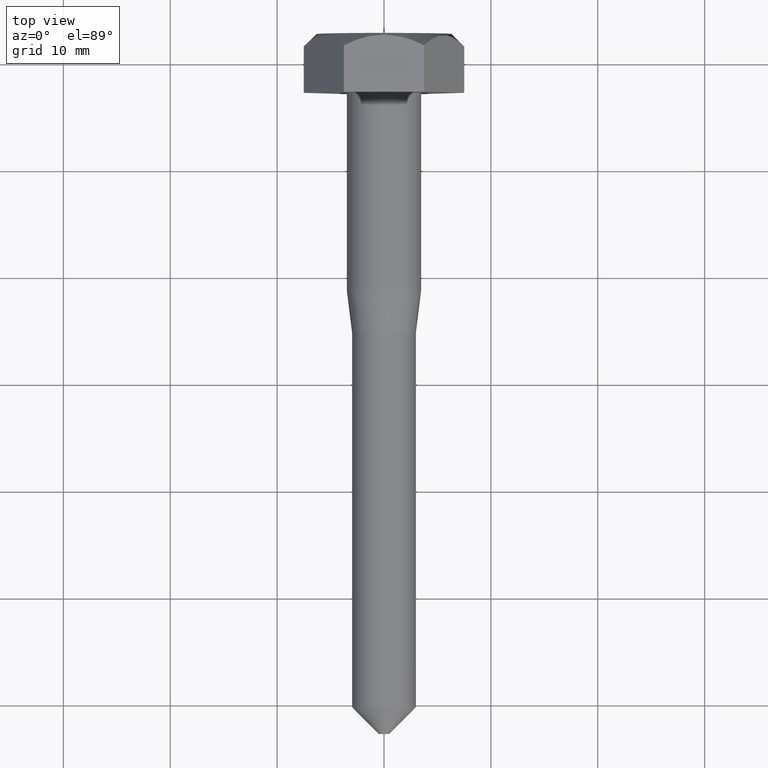
[diagram: clean part render]
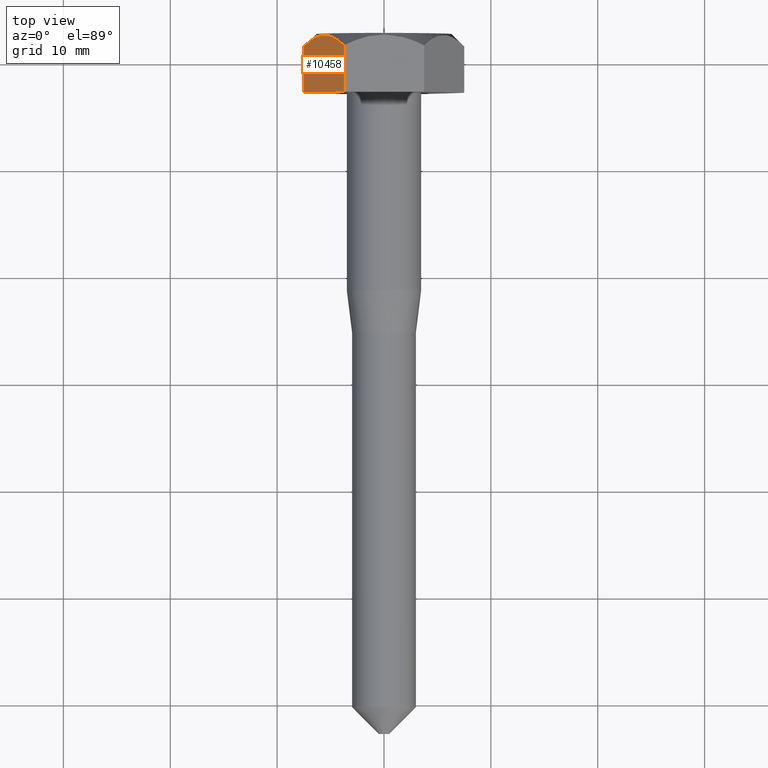
[diagram: same view with one face highlighted and labeled with its STEP entity id]
A machine part, top view. The second image highlights one B-rep face of the part: STEP entity #10458.
In plain terms, the highlighted planar face has unit normal (0.866, 0, -0.5).
Its self-contained STEP definition (entity closure, byte-faithful):
#66 = EDGE_CURVE ( 'NONE', #11810, #10404, #16002, .T. ) ;
#328 = CARTESIAN_POINT ( 'NONE',  ( -5.949864958611462900, 2.601377983577025000, 2.694531593511266800 ) ) ;
#364 = EDGE_LOOP ( 'NONE', ( #5814, #16353, #15680, #7444 ) ) ;
#492 = CARTESIAN_POINT ( 'NONE',  ( -4.969631889421850500, 2.475181280895888800, 4.392345072606817200 ) ) ;
#1723 = CARTESIAN_POINT ( 'NONE',  ( -5.458453327953948000, 2.599288983918491600, 3.545681505240333200 ) ) ;
#2127 = LINE ( 'NONE', #7148, #10095 ) ;
#2465 = PLANE ( 'NONE',  #14475 ) ;
#2472 = CARTESIAN_POINT ( 'NONE',  ( -7.505553499465141200, 1.594446500534859600, 5.226952993749425600E-014 ) ) ;
#3112 = VERTEX_POINT ( 'NONE', #2472 ) ;
#3322 = CARTESIAN_POINT ( 'NONE',  ( -7.505553499465141200, 1.594446500534859600, 5.226952993749425600E-014 ) ) ;
#3563 = B_SPLINE_CURVE_WITH_KNOTS ( 'NONE', 3,
 ( #5491, #4335, #9639, #14427, #492, #8024, #1723, #328, #10600, #4174, #14810, #3322 ),
 .UNSPECIFIED., .F., .F.,
 ( 4, 2, 2, 2, 2, 4 ),
 ( 2.544317247021035900E-007, 0.001938488494164369500, 0.002907605525384203300, 0.003876722556604036300, 0.005814956619043702200, 0.007753190681483368100 ),
 .UNSPECIFIED. ) ;
#4174 = CARTESIAN_POINT ( 'NONE',  ( -6.906929487116229000, 2.142283660219721500, 1.036847204019087000 ) ) ;
#4335 = CARTESIAN_POINT ( 'NONE',  ( -4.045990535464282400, 1.887660286266630700, 5.992138825633005300 ) ) ;
#5163 = CARTESIAN_POINT ( 'NONE',  ( -7.505553499465141200, -2.750000000000000000, 5.241099996214262600E-014 ) ) ;
#5269 = VERTEX_POINT ( 'NONE', #5462 ) ;
#5375 = EDGE_CURVE ( 'NONE', #3112, #11810, #2127, .T. ) ;
#5462 = CARTESIAN_POINT ( 'NONE',  ( -3.752776749732509700, 1.594446500534860000, 6.500000000000040000 ) ) ;
#5491 = CARTESIAN_POINT ( 'NONE',  ( -3.752776749732509700, 1.594446500534860000, 6.500000000000040000 ) ) ;
#5814 = ORIENTED_EDGE ( 'NONE', *, *, #15382, .F. ) ;
#6305 = DIRECTION ( 'NONE',  ( 0.8660254037844346000, 0.0000000000000000000, -0.5000000000000071100 ) ) ;
#7148 = CARTESIAN_POINT ( 'NONE',  ( -7.505553499465141200, 2.750000000000000000, 5.241099996214262600E-014 ) ) ;
#7444 = ORIENTED_EDGE ( 'NONE', *, *, #66, .T. ) ;
#7545 = LINE ( 'NONE', #13235, #10343 ) ;
#7569 = DIRECTION ( 'NONE',  ( 0.5000000000000069900, 0.0000000000000000000, 0.8660254037844346000 ) ) ;
#8024 = CARTESIAN_POINT ( 'NONE',  ( -5.292282599695922400, 2.572960391561879100, 3.833497649313948800 ) ) ;
#8495 = FACE_OUTER_BOUND ( 'NONE', #364, .T. ) ;
#8591 = CARTESIAN_POINT ( 'NONE',  ( -7.505553499465141200, -2.750000000000000000, 5.241099996214262600E-014 ) ) ;
#9639 = CARTESIAN_POINT ( 'NONE',  ( -4.345818152688523600, 2.136964185732490100, 5.472822159088315700 ) ) ;
#10095 = VECTOR ( 'NONE', #10996, 1000.000000000000000 ) ;
#10343 = VECTOR ( 'NONE', #14748, 1000.000000000000000 ) ;
#10404 = VERTEX_POINT ( 'NONE', #13496 ) ;
#10458 = ADVANCED_FACE ( 'NONE', ( #8495 ), #2465, .F. ) ;
#10600 = CARTESIAN_POINT ( 'NONE',  ( -6.271878921056888600, 2.502165984431124800, 2.136787049809222500 ) ) ;
#10996 = DIRECTION ( 'NONE',  ( -0.0000000000000000000, -1.000000000000000000, -0.0000000000000000000 ) ) ;
#11369 = DIRECTION ( 'NONE',  ( -0.5000000000000069900, 0.0000000000000000000, -0.8660254037844344900 ) ) ;
#11425 = CARTESIAN_POINT ( 'NONE',  ( -7.505553499465141200, 2.750000000000000000, 5.241099996214262600E-014 ) ) ;
#11810 = VERTEX_POINT ( 'NONE', #8591 ) ;
#12200 = VECTOR ( 'NONE', #7569, 999.9999999999998900 ) ;
#13235 = CARTESIAN_POINT ( 'NONE',  ( -3.752776749732509700, 2.750000000000000000, 6.500000000000040000 ) ) ;
#13496 = CARTESIAN_POINT ( 'NONE',  ( -3.752776749732509700, -2.750000000000000000, 6.500000000000040000 ) ) ;
#14140 = EDGE_CURVE ( 'NONE', #5269, #3112, #3563, .T. ) ;
#14427 = CARTESIAN_POINT ( 'NONE',  ( -4.811646394920833500, 2.404118058024105900, 4.665983975941467900 ) ) ;
#14475 = AXIS2_PLACEMENT_3D ( 'NONE', #11425, #6305, #11369 ) ;
#14748 = DIRECTION ( 'NONE',  ( -0.0000000000000000000, -1.000000000000000000, -0.0000000000000000000 ) ) ;
#14810 = CARTESIAN_POINT ( 'NONE',  ( -7.210613000295522200, 1.889386999704607100, 0.5108519297715435900 ) ) ;
#15382 = EDGE_CURVE ( 'NONE', #5269, #10404, #7545, .T. ) ;
#15680 = ORIENTED_EDGE ( 'NONE', *, *, #5375, .T. ) ;
#16002 = LINE ( 'NONE', #5163, #12200 ) ;
#16353 = ORIENTED_EDGE ( 'NONE', *, *, #14140, .T. ) ;